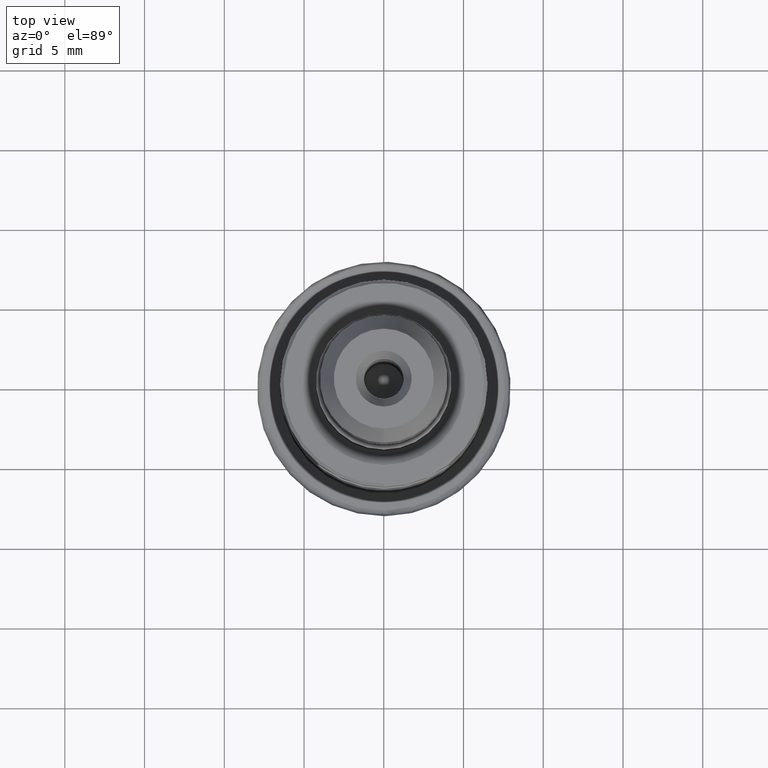
[diagram: clean part render]
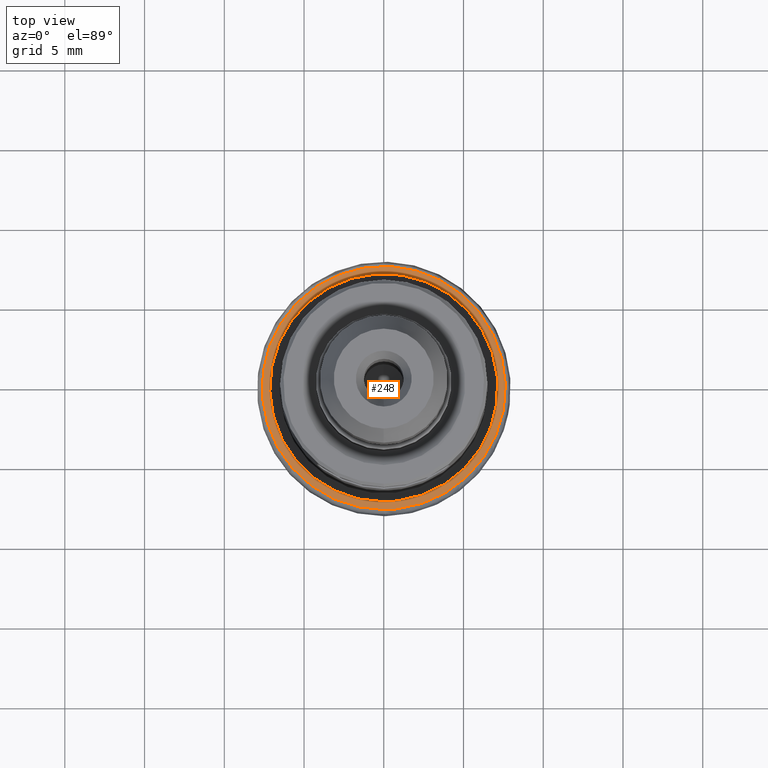
[diagram: same view with one face highlighted and labeled with its STEP entity id]
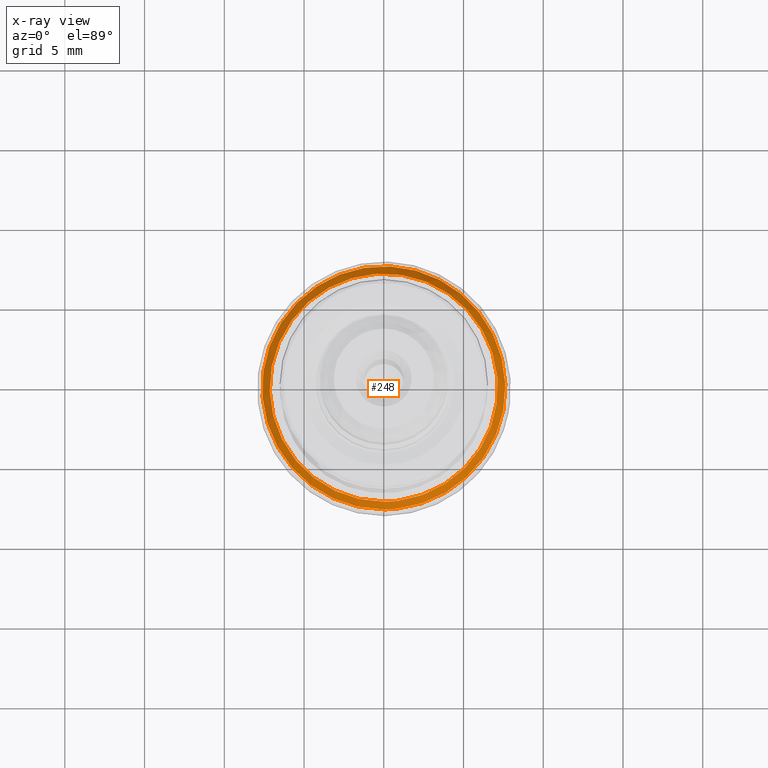
[diagram: x-ray of the same camera — body ghosted, the highlighted face saturated]
A machine part, top view. The second image highlights one B-rep face of the part: STEP entity #248.
The next image is the same camera in x-ray: the body ghosted, the highlighted face saturated — about 0% of this face is hidden behind the body in this view.
In plain terms, the highlighted face is a SurfaceOfRevolution surface.
Its self-contained STEP definition (entity closure, byte-faithful):
#111=SURFACE_OF_REVOLUTION('',#176,#132);
#132=AXIS1_PLACEMENT('',#1506,#950);
#176=LINE('',#1505,#194);
#194=VECTOR('',#949,0.937230348845718);
#248=ADVANCED_FACE('',(#315,#316),#111,.F.);
#315=FACE_BOUND('',#401,.T.);
#316=FACE_BOUND('',#402,.T.);
#401=EDGE_LOOP('',(#523));
#402=EDGE_LOOP('',(#524));
#523=ORIENTED_EDGE('',*,*,#656,.T.);
#524=ORIENTED_EDGE('',*,*,#657,.F.);
#595=VERTEX_POINT('',#1490);
#596=VERTEX_POINT('',#1504);
#656=EDGE_CURVE('',#595,#595,#697,.T.);
#657=EDGE_CURVE('',#596,#596,#698,.T.);
#697=CIRCLE('',#810,7.15192640958592);
#698=CIRCLE('',#811,7.623643193272);
#810=AXIS2_PLACEMENT_3D('',#1489,#944,#945);
#811=AXIS2_PLACEMENT_3D('',#1503,#947,#948);
#944=DIRECTION('',(0.,1.17145536458252E-15,1.));
#945=DIRECTION('',(0.,-1.,1.21276658667217E-15));
#947=DIRECTION('',(0.,1.17145536458252E-15,1.));
#948=DIRECTION('',(0.,-1.,1.13772603989896E-15));
#949=DIRECTION('',(-0.497489686040532,0.150634565802299,0.854291074440583));
#950=DIRECTION('',(0.,1.17145536458252E-15,1.));
#1489=CARTESIAN_POINT('',(0.,8.39234735314219E-15,7.16403510272284));
#1490=CARTESIAN_POINT('',(0.,-7.15192640958591,7.16403510272285));
#1503=CARTESIAN_POINT('',(0.,7.45440109368154E-15,6.36336758450724));
#1504=CARTESIAN_POINT('',(0.,-7.62364319327199,6.36336758450725));
#1505=CARTESIAN_POINT('',(7.61426797150052,-0.377966660571877,6.36336758450724));
#1506=CARTESIAN_POINT('',(0.,0.,0.));